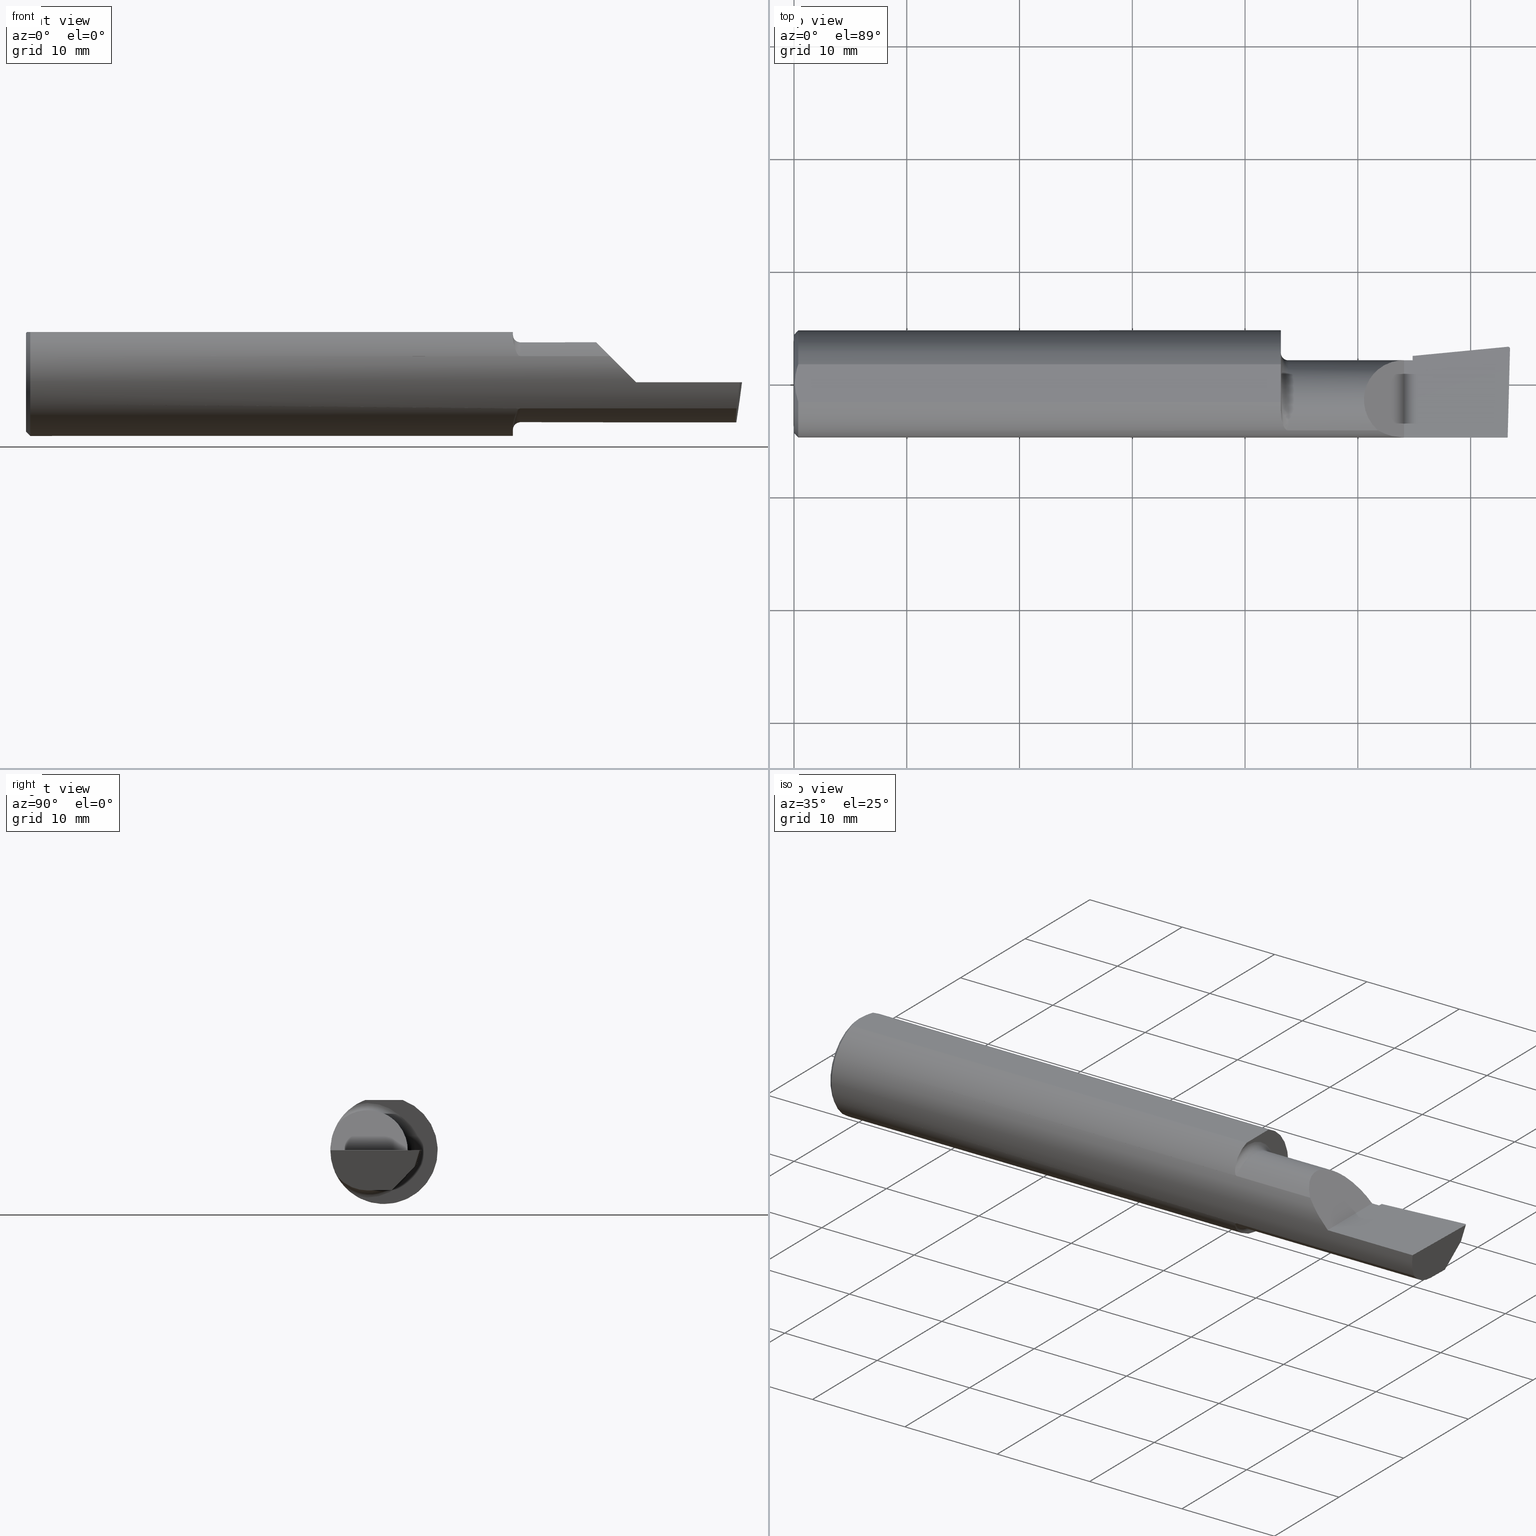
[diagram: canonical four-view strip — front | top / right | iso, engineering-drawing reading convention]
A machine part, canonical four-view strip (front | top / right | iso — engineering-drawing reading convention). The complete STEP part file that produces these views, byte-faithful:
ISO-10303-21;
HEADER;
FILE_DESCRIPTION (( 'STEP AP203' ),
    '1' );
FILE_NAME ('213660-B320750R.STEP',
    '2024-04-12T23:12:43',
    ( '' ),
    ( '' ),
    'SwSTEP 2.0',
    'SolidWorks 2022',
    '' );
FILE_SCHEMA (( 'CONFIG_CONTROL_DESIGN' ));
ENDSEC;

DATA;
#1 = ORIENTED_EDGE ( 'NONE', *, *, #63, .T. ) ;
#2 = CARTESIAN_POINT ( 'NONE',  ( 1.713764108097882932, -0.1573043405450769705, 0.1018329020719639239 ) ) ;
#3 = DIRECTION ( 'NONE',  ( 0.000000000000000000, 0.000000000000000000, 1.000000000000000000 ) ) ;
#4 = ORIENTED_EDGE ( 'NONE', *, *, #262, .F. ) ;
#5 = EDGE_CURVE ( 'NONE', #229, #623, #480, .T. ) ;
#6 = DIRECTION ( 'NONE',  ( -1.000000000000000000, -0.000000000000000000, -0.000000000000000000 ) ) ;
#7 = CARTESIAN_POINT ( 'NONE',  ( 1.701903396790307221, -0.1248165254919059997, -0.1399798634953948184 ) ) ;
#8 = ORIENTED_EDGE ( 'NONE', *, *, #447, .F. ) ;
#9 = EDGE_CURVE ( 'NONE', #566, #609, #526, .T. ) ;
#10 = CARTESIAN_POINT ( 'NONE',  ( 1.706142321956750418, -0.1426151417460928550, 0.1217894822571234936 ) ) ;
#11 = CARTESIAN_POINT ( 'NONE',  ( 2.487725449370724817, -0.1873500000000000443, -0.03213820089768506388 ) ) ;
#12 = CC_DESIGN_APPROVAL ( #347, ( #223 ) ) ;
#13 = ORIENTED_EDGE ( 'NONE', *, *, #370, .F. ) ;
#14 = VECTOR ( 'NONE', #366, 39.37007874015748854 ) ;
#15 = CARTESIAN_POINT ( 'NONE',  ( 1.700383728133729733, -0.1114837668894149425, 0.1508119329971098488 ) ) ;
#16 = ORIENTED_EDGE ( 'NONE', *, *, #209, .F. ) ;
#17 = DIRECTION ( 'NONE',  ( 0.7071067811865390240, 0.000000000000000000, -0.7071067811865560104 ) ) ;
#18 = ORIENTED_EDGE ( 'NONE', *, *, #670, .T. ) ;
#19 = APPROVAL_ROLE ( '' ) ;
#20 = DIRECTION ( 'NONE',  ( 0.000000000000000000, 0.000000000000000000, 1.000000000000000000 ) ) ;
#21 = ORIENTED_EDGE ( 'NONE', *, *, #201, .T. ) ;
#22 = VECTOR ( 'NONE', #338, 39.37007874015748854 ) ;
#23 = AXIS2_PLACEMENT_3D ( 'NONE', #495, #6, #281 ) ;
#24 = APPLICATION_PROTOCOL_DEFINITION ( 'international standard', 'config_control_design', 1994, #459 ) ;
#25 = CARTESIAN_POINT ( 'NONE',  ( 0.000000000000000000, 0.06597272163553663527, 0.1753499999999999781 ) ) ;
#26 = ORIENTED_EDGE ( 'NONE', *, *, #616, .F. ) ;
#27 = APPLICATION_PROTOCOL_DEFINITION ( 'international standard', 'config_control_design', 1994, #531 ) ;
#28 = ADVANCED_FACE ( 'NONE', ( #199 ), #45, .F. ) ;
#29 = CARTESIAN_POINT ( 'NONE',  ( 2.129999999999999893, -0.1873499999999999888, 1.065442715258197396E-16 ) ) ;
#30 = ORIENTED_EDGE ( 'NONE', *, *, #460, .T. ) ;
#31 = PERSON_AND_ORGANIZATION ( #589, #274 ) ;
#32 = DIRECTION ( 'NONE',  ( 0.000000000000000000, 1.000000000000000000, 8.537024980200821325E-17 ) ) ;
#33 = ORIENTED_EDGE ( 'NONE', *, *, #233, .T. ) ;
#34 = LOCAL_TIME ( 16, 12, 43.00000000000000000, #570 ) ;
#35 = AXIS2_PLACEMENT_3D ( 'NONE', #275, #393, #60 ) ;
#36 = DIRECTION ( 'NONE',  ( 1.000000000000000000, 0.000000000000000000, 0.000000000000000000 ) ) ;
#37 = ORIENTED_EDGE ( 'NONE', *, *, #5, .T. ) ;
#38 = ADVANCED_FACE ( 'NONE', ( #151 ), #40, .F. ) ;
#39 = LINE ( 'NONE', #635, #343 ) ;
#40 = PLANE ( 'NONE',  #165 ) ;
#41 = VERTEX_POINT ( 'NONE', #102 ) ;
#42 = EDGE_CURVE ( 'NONE', #609, #72, #578, .T. ) ;
#43 = DIRECTION ( 'NONE',  ( 0.000000000000000000, 1.000000000000000000, 0.000000000000000000 ) ) ;
#44 = CIRCLE ( 'NONE', #136, 0.1400500000000000356 ) ;
#45 = PLANE ( 'NONE',  #474 ) ;
#46 = CARTESIAN_POINT ( 'NONE',  ( 0.01499999999999999424, 0.06597272163553663527, 0.1753499999999999781 ) ) ;
#47 = CARTESIAN_POINT ( 'NONE',  ( 2.486748873877666188, 0.1140025764947606296, -0.05001468779820768262 ) ) ;
#48 = CARTESIAN_POINT ( 'NONE',  ( 2.493512870449283714, 0.1299961668063693288, 6.829619984160658046E-17 ) ) ;
#49 = CARTESIAN_POINT ( 'NONE',  ( 1.942499999999999893, -0.1635956445993030084, 0.09130436773856176469 ) ) ;
#50 = DIRECTION ( 'NONE',  ( 4.755568962650853567E-18, -0.6963153109074925462, -0.7177360153954946975 ) ) ;
#51 = CARTESIAN_POINT ( 'NONE',  ( 2.467035950088918739, 0.05927214514111213417, -0.1998254950914886141 ) ) ;
#52 = VECTOR ( 'NONE', #591, 39.37007874015748143 ) ;
#53 = APPROVAL_PERSON_ORGANIZATION ( #673, #611, #19 ) ;
#54 = DESIGN_CONTEXT ( 'detailed design', #531, 'design' ) ;
#55 = VERTEX_POINT ( 'NONE', #314 ) ;
#56 = FACE_OUTER_BOUND ( 'NONE', #685, .T. ) ;
#57 = CARTESIAN_POINT ( 'NONE',  ( 1.699999999999999956, -0.09715400696864101571, -0.1601908905959925355 ) ) ;
#58 = ORIENTED_EDGE ( 'NONE', *, *, #484, .T. ) ;
#59 = CARTESIAN_POINT ( 'NONE',  ( 1.722800914500664637, -0.1635956445997546194, 0.09130436773775278680 ) ) ;
#60 = DIRECTION ( 'NONE',  ( 0.000000000000000000, -1.000000000000000000, 0.000000000000000000 ) ) ;
#61 = VERTEX_POINT ( 'NONE', #372 ) ;
#62 = CARTESIAN_POINT ( 'NONE',  ( 1.699999999999999734, -0.1045012500212951778, 0.1557348687830036327 ) ) ;
#63 = EDGE_CURVE ( 'NONE', #139, #61, #259, .T. ) ;
#64 = CARTESIAN_POINT ( 'NONE',  ( 0.003000000000000172667, -0.01126410975715121283, 0.1753500000000000059 ) ) ;
#65 = ORIENTED_EDGE ( 'NONE', *, *, #684, .F. ) ;
#66 = CIRCLE ( 'NONE', #542, 0.1873499999999999888 ) ;
#67 = COORDINATED_UNIVERSAL_TIME_OFFSET ( 8, 0, .BEHIND. ) ;
#68 = DIRECTION ( 'NONE',  ( 1.000000000000000000, 6.829619984160658046E-18, 0.000000000000000000 ) ) ;
#69 = ORIENTED_EDGE ( 'NONE', *, *, #280, .T. ) ;
#70 = APPROVAL_DATE_TIME ( #564, #611 ) ;
#71 = CARTESIAN_POINT ( 'NONE',  ( 2.490039159128059953, -0.2497391662021650194, 6.932588350567417155E-17 ) ) ;
#72 = VERTEX_POINT ( 'NONE', #690 ) ;
#73 = ORIENTED_EDGE ( 'NONE', *, *, #219, .T. ) ;
#74 = CC_DESIGN_APPROVAL ( #318, ( #89 ) ) ;
#75 = EDGE_CURVE ( 'NONE', #590, #540, #203, .T. ) ;
#76 = AXIS2_PLACEMENT_3D ( 'NONE', #444, #222, #329 ) ;
#77 = PERSON_AND_ORGANIZATION ( #589, #274 ) ;
#78 = CARTESIAN_POINT ( 'NONE',  ( 2.038695632261437130, -0.1635956445993029529, 0.09130436773856191734 ) ) ;
#79 = EDGE_LOOP ( 'NONE', ( #619, #695, #494, #214, #178 ) ) ;
#80 = ADVANCED_FACE ( 'NONE', ( #576 ), #418, .F. ) ;
#81 = CARTESIAN_POINT ( 'NONE',  ( 0.000000000000000000, 0.000000000000000000, 0.000000000000000000 ) ) ;
#82 = FACE_OUTER_BOUND ( 'NONE', #79, .T. ) ;
#83 = ORIENTED_EDGE ( 'NONE', *, *, #422, .F. ) ;
#84 = VERTEX_POINT ( 'NONE', #630 ) ;
#85 = ADVANCED_FACE ( 'NONE', ( #643 ), #364, .T. ) ;
#86 = LINE ( 'NONE', #71, #156 ) ;
#87 = ORIENTED_EDGE ( 'NONE', *, *, #536, .F. ) ;
#88 = VECTOR ( 'NONE', #581, 39.37007874015748143 ) ;
#89 = PRODUCT_DEFINITION_FORMATION_WITH_SPECIFIED_SOURCE ( 'ANY', '', #377, .NOT_KNOWN. ) ;
#90 = CARTESIAN_POINT ( 'NONE',  ( 2.160000000000000142, -0.004807985797372735411, -0.1400500000000000911 ) ) ;
#91 = ADVANCED_FACE ( 'NONE', ( #584 ), #477, .T. ) ;
#92 = DIRECTION ( 'NONE',  ( 0.000000000000000000, 0.000000000000000000, -1.000000000000000000 ) ) ;
#93 = CARTESIAN_POINT ( 'NONE',  ( 2.497312560284794092, 0.1299961668063694675, 6.787656272032840287E-17 ) ) ;
#94 = LINE ( 'NONE', #633, #125 ) ;
#95 = EDGE_CURVE ( 'NONE', #609, #139, #94, .T. ) ;
#96 = CARTESIAN_POINT ( 'NONE',  ( 0.01125230581755086272, 0.05532998191409922023, 0.1753500000000000059 ) ) ;
#97 = DIRECTION ( 'NONE',  ( -0.1240019227988267969, -0.3022330132596590668, -0.9451342385281472636 ) ) ;
#98 = VECTOR ( 'NONE', #473, 39.37007874015748143 ) ;
#99 = CARTESIAN_POINT ( 'NONE',  ( 2.491672876940991710, -0.1873499999999999888, 6.915950918908297591E-17 ) ) ;
#100 = CARTESIAN_POINT ( 'NONE',  ( 2.509953961983671711, 0.1316084575252021438, -6.829619984160658046E-17 ) ) ;
#101 = DIRECTION ( 'NONE',  ( 4.755568962650853567E-18, -0.6963153109074925462, -0.7177360153954946975 ) ) ;
#102 = CARTESIAN_POINT ( 'NONE',  ( 0.01499999999999999424, 0.06597272163553663527, 0.1753499999999999781 ) ) ;
#103 = DIRECTION ( 'NONE',  ( -1.000000000000000000, -0.000000000000000000, -0.000000000000000000 ) ) ;
#104 = ADVANCED_FACE ( 'NONE', ( #693 ), #206, .T. ) ;
#105 = CARTESIAN_POINT ( 'NONE',  ( 2.160000000000000142, -0.05739999999999999963, 0.000000000000000000 ) ) ;
#106 = ORIENTED_EDGE ( 'NONE', *, *, #188, .T. ) ;
#107 = LINE ( 'NONE', #121, #575 ) ;
#108 = CIRCLE ( 'NONE', #35, 0.1400499999999999801 ) ;
#109 = DIRECTION ( 'NONE',  ( 0.000000000000000000, 0.9524855432518806175, -0.3045837978228160825 ) ) ;
#110 = AXIS2_PLACEMENT_3D ( 'NONE', #667, #176, #302 ) ;
#111 = CC_DESIGN_DATE_AND_TIME_ASSIGNMENT ( #251, #149, ( #223 ) ) ;
#112 = ORIENTED_EDGE ( 'NONE', *, *, #520, .F. ) ;
#113 = CARTESIAN_POINT ( 'NONE',  ( 2.160000000000000142, 0.06382066673065313334, -0.06931012851386068874 ) ) ;
#114 = CARTESIAN_POINT ( 'NONE',  ( 2.481080296960508580, -0.1635956445993030084, -0.09130436773856176469 ) ) ;
#115 = ORIENTED_EDGE ( 'NONE', *, *, #116, .F. ) ;
#116 = EDGE_CURVE ( 'NONE', #284, #683, #594, .T. ) ;
#117 = DIMENSIONAL_EXPONENTS ( 1.000000000000000000, 0.000000000000000000, 0.000000000000000000, 0.000000000000000000, 0.000000000000000000, 0.000000000000000000, 0.000000000000000000 ) ;
#118 = CARTESIAN_POINT ( 'NONE',  ( 1.699999999999999956, -0.05740000000000000657, 0.000000000000000000 ) ) ;
#119 = CARTESIAN_POINT ( 'NONE',  ( 2.493766568580444432, 0.1168246249203732934, -0.04780233936830599606 ) ) ;
#120 = ORIENTED_EDGE ( 'NONE', *, *, #447, .T. ) ;
#121 = CARTESIAN_POINT ( 'NONE',  ( 2.500086462864346881, 0.1239389743774740454, 0.002134693520102628507 ) ) ;
#122 = LINE ( 'NONE', #119, #22 ) ;
#123 = AXIS2_PLACEMENT_3D ( 'NONE', #367, #579, #423 ) ;
#124 = ORIENTED_EDGE ( 'NONE', *, *, #219, .F. ) ;
#125 = VECTOR ( 'NONE', #320, 39.37007874015748854 ) ;
#126 = AXIS2_PLACEMENT_3D ( 'NONE', #252, #660, #608 ) ;
#127 = PERSON_AND_ORGANIZATION ( #589, #274 ) ;
#128 = PLANE ( 'NONE',  #499 ) ;
#129 = ORIENTED_EDGE ( 'NONE', *, *, #515, .T. ) ;
#130 =( LENGTH_UNIT ( ) NAMED_UNIT ( * ) SI_UNIT ( $, .METRE. ) );
#131 = DIRECTION ( 'NONE',  ( 0.000000000000000000, 1.000000000000000000, -1.438723400918613551E-16 ) ) ;
#132 = EDGE_LOOP ( 'NONE', ( #16, #144, #483, #289 ) ) ;
#133 = DIRECTION ( 'NONE',  ( 1.000000000000000000, 0.000000000000000000, 0.000000000000000000 ) ) ;
#134 = DIRECTION ( 'NONE',  ( -1.000000000000000000, -6.829619984160658046E-18, 0.000000000000000000 ) ) ;
#135 = ORIENTED_EDGE ( 'NONE', *, *, #404, .F. ) ;
#136 = AXIS2_PLACEMENT_3D ( 'NONE', #558, #402, #137 ) ;
#137 = DIRECTION ( 'NONE',  ( 0.000000000000000000, -1.000000000000000000, 0.000000000000000000 ) ) ;
#138 = PLANE ( 'NONE',  #310 ) ;
#139 = VERTEX_POINT ( 'NONE', #283 ) ;
#140 = DIRECTION ( 'NONE',  ( -1.000000000000000000, 0.000000000000000000, 1.033731667140896077E-16 ) ) ;
#141 = VERTEX_POINT ( 'NONE', #441 ) ;
#142 = ADVANCED_FACE ( 'NONE', ( #592 ), #645, .T. ) ;
#143 = CARTESIAN_POINT ( 'NONE',  ( 2.493512870449283714, 0.1299961668063693288, 6.829619984160658046E-17 ) ) ;
#144 = ORIENTED_EDGE ( 'NONE', *, *, #587, .T. ) ;
#145 =( BOUNDED_CURVE ( )  B_SPLINE_CURVE ( 3, ( #195, #265, #638, #624 ),
 .UNSPECIFIED., .F., .T. ) 
 B_SPLINE_CURVE_WITH_KNOTS ( ( 4, 4 ),
 ( 5.632580117768155148, 6.493234751459282528 ),
 .UNSPECIFIED. ) 
 CURVE ( )  GEOMETRIC_REPRESENTATION_ITEM ( )  RATIONAL_B_SPLINE_CURVE ( ( 1.000000000000000000, 0.9392195014330944058, 0.9392195014330944058, 1.000000000000000000 ) ) 
 REPRESENTATION_ITEM ( '' )  );
#146 = AXIS2_PLACEMENT_3D ( 'NONE', #497, #228, #3 ) ;
#147 = VECTOR ( 'NONE', #50, 39.37007874015748854 ) ;
#148 = DIRECTION ( 'NONE',  ( 0.000000000000000000, 0.9524855432518806175, -0.3045837978228160825 ) ) ;
#149 = DATE_TIME_ROLE ( 'classification_date' ) ;
#150 = CARTESIAN_POINT ( 'NONE',  ( 2.499910038027473025, 0.1272144908750952319, 6.760805322059822821E-17 ) ) ;
#151 = FACE_OUTER_BOUND ( 'NONE', #192, .T. ) ;
#152 = EDGE_CURVE ( 'NONE', #55, #595, #451, .T. ) ;
#153 = CARTESIAN_POINT ( 'NONE',  ( 1.975085956200449022, 0.08265000000000000124, 0.1549140437995494002 ) ) ;
#154 = CARTESIAN_POINT ( 'NONE',  ( 2.486346664144835739, 0.1139780975458775103, -0.04999999999999999584 ) ) ;
#155 = CARTESIAN_POINT ( 'NONE',  ( 0.003000000000000169632, 0.01127363201155560934, 0.1753499999999999781 ) ) ;
#156 = VECTOR ( 'NONE', #247, 39.37007874015748854 ) ;
#157 = DIRECTION ( 'NONE',  ( -4.858719700838190352E-34, -8.537024980200821325E-17, 1.000000000000000000 ) ) ;
#158 = ADVANCED_FACE ( 'NONE', ( #170 ), #600, .T. ) ;
#159 = CARTESIAN_POINT ( 'NONE',  ( 1.708072954143139865, -0.1479074971576196662, 0.1152872342625233942 ) ) ;
#160 = CARTESIAN_POINT ( 'NONE',  ( -9.564882787816664242E-19, 0.08264999999999998737, 3.267291166268304703E-16 ) ) ;
#161 = CARTESIAN_POINT ( 'NONE',  ( 1.724999999999999867, -0.1635956445993027586, 0.09130436773856215327 ) ) ;
#162 = CARTESIAN_POINT ( 'NONE',  ( 1.712184598714912687, -0.1550322129197695409, -0.1052705638704085067 ) ) ;
#163 = EDGE_LOOP ( 'NONE', ( #168, #276 ) ) ;
#164 = CARTESIAN_POINT ( 'NONE',  ( 2.160000000000000142, 0.09456875743780475407, -0.01088401009027229610 ) ) ;
#165 = AXIS2_PLACEMENT_3D ( 'NONE', #687, #157, #697 ) ;
#166 = CARTESIAN_POINT ( 'NONE',  ( 1.724999999999999867, -0.1635956445993029251, -0.09130436773856190347 ) ) ;
#167 = EDGE_CURVE ( 'NONE', #601, #306, #634, .T. ) ;
#168 = ORIENTED_EDGE ( 'NONE', *, *, #536, .T. ) ;
#169 = CARTESIAN_POINT ( 'NONE',  ( 2.492906680581862044, 0.1299669910246663562, 6.902945873237403297E-17 ) ) ;
#170 = FACE_OUTER_BOUND ( 'NONE', #399, .T. ) ;
#171 = ORIENTED_EDGE ( 'NONE', *, *, #670, .F. ) ;
#172 = CARTESIAN_POINT ( 'NONE',  ( 2.038695632261437130, -0.1635956445993029529, 0.09130436773856191734 ) ) ;
#173 = CARTESIAN_POINT ( 'NONE',  ( 0.01499999999999999424, 0.000000000000000000, -0.1873499999999999888 ) ) ;
#174 = ORIENTED_EDGE ( 'NONE', *, *, #75, .F. ) ;
#175 = APPROVAL_STATUS ( 'not_yet_approved' ) ;
#176 = DIRECTION ( 'NONE',  ( -0.06894566448119621160, 0.7160281025913034503, -0.6946583704589934793 ) ) ;
#177 = VECTOR ( 'NONE', #68, 39.37007874015748143 ) ;
#178 = ORIENTED_EDGE ( 'NONE', *, *, #5, .F. ) ;
#179 = AXIS2_PLACEMENT_3D ( 'NONE', #218, #440, #652 ) ;
#180 = EDGE_CURVE ( 'NONE', #613, #194, #122, .T. ) ;
#181 = PLANE ( 'NONE',  #409 ) ;
#182 = ORIENTED_EDGE ( 'NONE', *, *, #42, .T. ) ;
#183 = CARTESIAN_POINT ( 'NONE',  ( 2.129999999999999893, -0.2500000000000000555, 1.065442715258197396E-16 ) ) ;
#184 = CARTESIAN_POINT ( 'NONE',  ( 2.477873865042410806, -0.05739999999999999963, -0.1400500000000000633 ) ) ;
#185 = EDGE_LOOP ( 'NONE', ( #405, #462 ) ) ;
#186 = CARTESIAN_POINT ( 'NONE',  ( 1.699999999999999956, -0.09715400696864101571, -0.1601908905959925355 ) ) ;
#187 = ORIENTED_EDGE ( 'NONE', *, *, #627, .F. ) ;
#188 = EDGE_CURVE ( 'NONE', #590, #601, #108, .T. ) ;
#189 = VECTOR ( 'NONE', #385, 39.37007874015748143 ) ;
#190 = DATE_AND_TIME ( #301, #417 ) ;
#191 = CARTESIAN_POINT ( 'NONE',  ( 2.491786964307025176, 0.1037103972642544891, -0.06112352112763055206 ) ) ;
#192 = EDGE_LOOP ( 'NONE', ( #471, #524, #30, #349 ) ) ;
#193 = CC_DESIGN_PERSON_AND_ORGANIZATION_ASSIGNMENT ( #396, #358, ( #571 ) ) ;
#194 = VERTEX_POINT ( 'NONE', #549 ) ;
#195 = CARTESIAN_POINT ( 'NONE',  ( 2.481080296960508580, -0.1635956445993030084, -0.09130436773856176469 ) ) ;
#196 = ORIENTED_EDGE ( 'NONE', *, *, #616, .T. ) ;
#197 =( BOUNDED_CURVE ( )  B_SPLINE_CURVE ( 3, ( #464, #509, #457, #191 ),
 .UNSPECIFIED., .F., .F. ) 
 B_SPLINE_CURVE_WITH_KNOTS ( ( 4, 4 ),
 ( 3.156599629463173073, 4.715023529952367731 ),
 .UNSPECIFIED. ) 
 CURVE ( )  GEOMETRIC_REPRESENTATION_ITEM ( )  RATIONAL_B_SPLINE_CURVE ( ( 1.000000000000000000, 0.8076450242550557990, 0.8076450242550557990, 1.000000000000000000 ) ) 
 REPRESENTATION_ITEM ( '' )  );
#198 = DIRECTION ( 'NONE',  ( 0.1219104985251942275, 0.000000000000000000, 0.9925410975618785825 ) ) ;
#199 = FACE_OUTER_BOUND ( 'NONE', #163, .T. ) ;
#200 = VECTOR ( 'NONE', #656, 39.37007874015748854 ) ;
#201 = EDGE_CURVE ( 'NONE', #625, #229, #653, .T. ) ;
#202 = DIRECTION ( 'NONE',  ( -0.9922060308645608284, 0.02598182930461468559, 0.1218693434050591162 ) ) ;
#203 = LINE ( 'NONE', #49, #286 ) ;
#204 = CALENDAR_DATE ( 2024, 12, 4 ) ;
#205 = DIRECTION ( 'NONE',  ( -6.829619984160658046E-18, 1.000000000000000000, 0.000000000000000000 ) ) ;
#206 = PLANE ( 'NONE',  #309 ) ;
#207 = CARTESIAN_POINT ( 'NONE',  ( 1.699999999999999956, 0.000000000000000000, 0.000000000000000000 ) ) ;
#208 = ORIENTED_EDGE ( 'NONE', *, *, #391, .T. ) ;
#209 = EDGE_CURVE ( 'NONE', #517, #566, #631, .T. ) ;
#210 = CIRCLE ( 'NONE', #606, 0.1873499999999999888 ) ;
#211 = DIRECTION ( 'NONE',  ( 0.1240019227988267553, 0.3022330132596590113, 0.9451342385281470415 ) ) ;
#212 = AXIS2_PLACEMENT_3D ( 'NONE', #688, #202, #198 ) ;
#213 = DIRECTION ( 'NONE',  ( -0.7071067811865439090, 0.000000000000000000, -0.7071067811865512365 ) ) ;
#214 = ORIENTED_EDGE ( 'NONE', *, *, #233, .F. ) ;
#215 = CARTESIAN_POINT ( 'NONE',  ( 2.160000000000000142, 0.09791172361284175563, 3.308097179827818849E-16 ) ) ;
#216 = DIRECTION ( 'NONE',  ( -0.09165774897393341725, 0.9519021185660614393, -0.2923717047227303856 ) ) ;
#217 = ORIENTED_EDGE ( 'NONE', *, *, #520, .T. ) ;
#218 = CARTESIAN_POINT ( 'NONE',  ( 0.01499999999999999424, 0.000000000000000000, 0.000000000000000000 ) ) ;
#219 = EDGE_CURVE ( 'NONE', #84, #518, #386, .T. ) ;
#220 = CARTESIAN_POINT ( 'NONE',  ( 2.493512870449283714, 0.1299961668063693288, 6.829619984160658046E-17 ) ) ;
#221 = ORIENTED_EDGE ( 'NONE', *, *, #188, .F. ) ;
#222 = DIRECTION ( 'NONE',  ( 1.000000000000000000, 6.829619984160658046E-18, 0.000000000000000000 ) ) ;
#223 = SECURITY_CLASSIFICATION ( '', '', #355 ) ;
#224 = CARTESIAN_POINT ( 'NONE',  ( 2.491672876940991710, -0.1873499999999999888, 6.915950918908297591E-17 ) ) ;
#225 = AXIS2_PLACEMENT_3D ( 'NONE', #519, #562, #307 ) ;
#226 = ORIENTED_EDGE ( 'NONE', *, *, #632, .F. ) ;
#227 = CARTESIAN_POINT ( 'NONE',  ( 2.480058035321255794, 0.02601009779168077587, -0.1400500000000000633 ) ) ;
#228 = DIRECTION ( 'NONE',  ( -1.000000000000000000, -0.000000000000000000, -0.000000000000000000 ) ) ;
#229 = VERTEX_POINT ( 'NONE', #503 ) ;
#230 = DIRECTION ( 'NONE',  ( 0.000000000000000000, 0.000000000000000000, 1.000000000000000000 ) ) ;
#231 = CARTESIAN_POINT ( 'NONE',  ( 1.722779935319434408, -0.1635956445993029529, -0.09130436773856197286 ) ) ;
#232 = ORIENTED_EDGE ( 'NONE', *, *, #587, .F. ) ;
#233 = EDGE_CURVE ( 'NONE', #623, #141, #490, .T. ) ;
#234 = CALENDAR_DATE ( 2024, 12, 4 ) ;
#235 = CARTESIAN_POINT ( 'NONE',  ( 2.066758987970638284, -0.1792580844883770730, 0.06324101202936138755 ) ) ;
#236 = ORIENTED_EDGE ( 'NONE', *, *, #422, .T. ) ;
#237 = VECTOR ( 'NONE', #32, 39.37007874015748143 ) ;
#238 = CC_DESIGN_PERSON_AND_ORGANIZATION_ASSIGNMENT ( #31, #365, ( #223 ) ) ;
#239 = CALENDAR_DATE ( 2024, 12, 4 ) ;
#240 = CARTESIAN_POINT ( 'NONE',  ( 2.097861799102314961, -0.1873500000000000165, 0.03213820089768509858 ) ) ;
#241 = EDGE_LOOP ( 'NONE', ( #303, #554, #469 ) ) ;
#242 = DIRECTION ( 'NONE',  ( -0.000000000000000000, 1.000000000000000000, -0.000000000000000000 ) ) ;
#243 = EDGE_CURVE ( 'NONE', #299, #646, #657, .T. ) ;
#244 = LINE ( 'NONE', #25, #605 ) ;
#245 = EDGE_LOOP ( 'NONE', ( #208, #615, #455, #171 ) ) ;
#246 = PERSON_AND_ORGANIZATION ( #589, #274 ) ;
#247 = DIRECTION ( 'NONE',  ( 0.02617694830779364323, 0.9996573249755593693, -2.665804247635780349E-18 ) ) ;
#248 = ORIENTED_EDGE ( 'NONE', *, *, #116, .T. ) ;
#249 = AXIS2_PLACEMENT_3D ( 'NONE', #317, #213, #430 ) ;
#250 = TOROIDAL_SURFACE ( 'NONE', #641, 0.1650500000000000023, 0.02499999999999992853 ) ;
#251 = DATE_AND_TIME ( #532, #373 ) ;
#252 = CARTESIAN_POINT ( 'NONE',  ( 1.699999999999999956, 0.000000000000000000, 0.000000000000000000 ) ) ;
#253 = ORIENTED_EDGE ( 'NONE', *, *, #460, .F. ) ;
#254 = APPROVAL_STATUS ( 'not_yet_approved' ) ;
#255 = CARTESIAN_POINT ( 'NONE',  ( 2.129999999999999893, -0.1873499999999999888, 1.065442715258197396E-16 ) ) ;
#256 = ORIENTED_EDGE ( 'NONE', *, *, #75, .T. ) ;
#257 = ADVANCED_FACE ( 'NONE', ( #453 ), #138, .F. ) ;
#258 = CARTESIAN_POINT ( 'NONE',  ( 1.699999999999999956, 0.1076500000000000096, 0.000000000000000000 ) ) ;
#259 = LINE ( 'NONE', #325, #530 ) ;
#260 = CC_DESIGN_SECURITY_CLASSIFICATION ( #223, ( #89 ) ) ;
#261 = AXIS2_PLACEMENT_3D ( 'NONE', #277, #538, #552 ) ;
#262 = EDGE_CURVE ( 'NONE', #646, #623, #210, .T. ) ;
#263 = CARTESIAN_POINT ( 'NONE',  ( 2.129999999999999893, 0.08264999999999990410, 1.065442715258197396E-16 ) ) ;
#264 = CARTESIAN_POINT ( 'NONE',  ( 0.000000000000000000, 0.000000000000000000, 0.000000000000000000 ) ) ;
#265 = CARTESIAN_POINT ( 'NONE',  ( 2.477925907309857401, -0.1365595166907235813, -0.1227499502647108609 ) ) ;
#266 = EDGE_CURVE ( 'NONE', #446, #540, #345, .T. ) ;
#267 = EDGE_LOOP ( 'NONE', ( #112, #563, #221, #256, #120, #248, #449, #226, #521, #253 ) ) ;
#268 = DIRECTION ( 'NONE',  ( 0.000000000000000000, -1.000000000000000000, 0.000000000000000000 ) ) ;
#269 = DIRECTION ( 'NONE',  ( 1.000000000000000000, 6.829619984160658046E-18, 0.000000000000000000 ) ) ;
#270 = ADVANCED_FACE ( 'NONE', ( #565 ), #359, .T. ) ;
#271 = AXIS2_PLACEMENT_3D ( 'NONE', #369, #97, #148 ) ;
#272 = CIRCLE ( 'NONE', #76, 0.1400500000000000356 ) ;
#273 = CARTESIAN_POINT ( 'NONE',  ( 0.01499999999999999424, 0.000000000000000000, -0.1873499999999999888 ) ) ;
#274 = ORGANIZATION ( 'UNSPECIFIED', 'UNSPECIFIED', '' ) ;
#275 = CARTESIAN_POINT ( 'NONE',  ( 1.724999999999999867, -0.05740000000000000657, 0.000000000000000000 ) ) ;
#276 = ORIENTED_EDGE ( 'NONE', *, *, #580, .T. ) ;
#277 = CARTESIAN_POINT ( 'NONE',  ( 2.160000000000000142, 0.09791172361283667636, 0.000000000000000000 ) ) ;
#278 = CARTESIAN_POINT ( 'NONE',  ( 1.717975941902153192, -0.1612443294219078060, -0.09540922431498248535 ) ) ;
#279 = ORIENTED_EDGE ( 'NONE', *, *, #637, .F. ) ;
#280 = EDGE_CURVE ( 'NONE', #41, #625, #244, .T. ) ;
#281 = DIRECTION ( 'NONE',  ( 0.000000000000000000, 0.000000000000000000, 1.000000000000000000 ) ) ;
#282 = B_SPLINE_CURVE_WITH_KNOTS ( 'NONE', 3,
 ( #492, #62, #15, #642, #333, #10, #159, #436, #2, #555, #602, #599, #59, #547 ),
 .UNSPECIFIED., .F., .F.,
 ( 4, 2, 2, 2, 2, 2, 4 ),
 ( 0.0002471551878304205298, 0.0008987327522055599521, 0.001550310316580699212, 0.002201887880955839122, 0.002527676663143408210, 0.002690571054237193404, 0.002853465445330977731 ),
 .UNSPECIFIED. ) ;
#283 = CARTESIAN_POINT ( 'NONE',  ( 2.160000000000000142, 0.08255448787293399870, -0.05000000000000000278 ) ) ;
#284 = VERTEX_POINT ( 'NONE', #675 ) ;
#285 = DIRECTION ( 'NONE',  ( -1.000000000000000000, -0.000000000000000000, -0.000000000000000000 ) ) ;
#286 = VECTOR ( 'NONE', #269, 39.37007874015748143 ) ;
#287 = CARTESIAN_POINT ( 'NONE',  ( 0.003000000000000218638, 2.334609556160449697E-17, 0.1753499999999999781 ) ) ;
#288 = VECTOR ( 'NONE', #694, 39.37007874015748143 ) ;
#289 = ORIENTED_EDGE ( 'NONE', *, *, #9, .F. ) ;
#290 = DATE_TIME_ROLE ( 'creation_date' ) ;
#291 = CARTESIAN_POINT ( 'NONE',  ( 1.700000000000000178, -0.1045082199249679489, -0.1557306416133595883 ) ) ;
#292 = ADVANCED_FACE ( 'NONE', ( #612 ), #428, .T. ) ;
#293 = ORIENTED_EDGE ( 'NONE', *, *, #607, .T. ) ;
#294 = COORDINATED_UNIVERSAL_TIME_OFFSET ( 8, 0, .BEHIND. ) ;
#295 = LINE ( 'NONE', #506, #14 ) ;
#296 = ORIENTED_EDGE ( 'NONE', *, *, #180, .F. ) ;
#297 =( NAMED_UNIT ( * ) PLANE_ANGLE_UNIT ( ) SI_UNIT ( $, .RADIAN. ) );
#298 = CARTESIAN_POINT ( 'NONE',  ( 2.500000000000000000, -0.2500000000000000555, 6.829619984160658046E-17 ) ) ;
#299 = VERTEX_POINT ( 'NONE', #400 ) ;
#300 = CIRCLE ( 'NONE', #126, 0.1873499999999999888 ) ;
#301 = CALENDAR_DATE ( 2024, 12, 4 ) ;
#302 = DIRECTION ( 'NONE',  ( 0.000000000000000000, 0.6963153109074925462, 0.7177360153954948085 ) ) ;
#303 = ORIENTED_EDGE ( 'NONE', *, *, #152, .F. ) ;
#304 = LINE ( 'NONE', #183, #354 ) ;
#305 = CARTESIAN_POINT ( 'NONE',  ( 2.160000000000000142, -0.05739999999999999963, -0.1400500000000000633 ) ) ;
#306 = VERTEX_POINT ( 'NONE', #186 ) ;
#307 = DIRECTION ( 'NONE',  ( 0.000000000000000000, 0.000000000000000000, -1.000000000000000000 ) ) ;
#308 = ORIENTED_EDGE ( 'NONE', *, *, #167, .T. ) ;
#309 = AXIS2_PLACEMENT_3D ( 'NONE', #100, #216, #556 ) ;
#310 = AXIS2_PLACEMENT_3D ( 'NONE', #512, #134, #352 ) ;
#311 = AXIS2_PLACEMENT_3D ( 'NONE', #81, #230, #133 ) ;
#312 = COORDINATED_UNIVERSAL_TIME_OFFSET ( 8, 0, .BEHIND. ) ;
#313 = LINE ( 'NONE', #479, #288 ) ;
#314 = CARTESIAN_POINT ( 'NONE',  ( 2.160000000000000142, 0.01441505128072292918, -0.1202356058309980713 ) ) ;
#315 = ADVANCED_FACE ( 'NONE', ( #82 ), #572, .F. ) ;
#316 = PLANE ( 'NONE',  #663 ) ;
#317 = CARTESIAN_POINT ( 'NONE',  ( 2.129999999999999893, -0.2500000000000000555, 1.065442715258197396E-16 ) ) ;
#318 = APPROVAL ( #617, 'UNSPECIFIED' ) ;
#319 = CARTESIAN_POINT ( 'NONE',  ( 2.500000000000000000, -0.05739999999999999963, -0.1400500000000000633 ) ) ;
#320 = DIRECTION ( 'NONE',  ( -0.9953961983671800740, -0.09584575252021031166, 0.000000000000000000 ) ) ;
#321 = EDGE_CURVE ( 'NONE', #306, #625, #300, .T. ) ;
#322 = CARTESIAN_POINT ( 'NONE',  ( 2.499806390372749210, 0.1232563466314183787, 6.833120963331979760E-17 ) ) ;
#323 = ORIENTED_EDGE ( 'NONE', *, *, #167, .F. ) ;
#324 = CARTESIAN_POINT ( 'NONE',  ( 1.921229036482944075, -0.06260079402492431389, 0.2087709635170538203 ) ) ;
#325 = CARTESIAN_POINT ( 'NONE',  ( 2.160000000000000142, 0.06382066673065313334, -0.06931012851386068874 ) ) ;
#326 = LINE ( 'NONE', #113, #147 ) ;
#327 = CARTESIAN_POINT ( 'NONE',  ( 1.700384441902395238, -0.1115101367984837888, -0.1507946173152225899 ) ) ;
#328 = UNCERTAINTY_MEASURE_WITH_UNIT (LENGTH_MEASURE( 1.000000000000000082E-05 ), #410, 'distance_accuracy_value', 'NONE');
#329 = DIRECTION ( 'NONE',  ( 0.000000000000000000, -1.000000000000000000, -1.776356839400250070E-15 ) ) ;
#330 = DIRECTION ( 'NONE',  ( -1.000000000000000000, -6.829619984160658046E-18, -0.000000000000000000 ) ) ;
#331 = EDGE_LOOP ( 'NONE', ( #293, #106, #308, #26 ) ) ;
#332 = ADVANCED_FACE ( 'NONE', ( #407 ), #181, .T. ) ;
#333 = CARTESIAN_POINT ( 'NONE',  ( 1.703025912205683445, -0.1310442973014112333, 0.1341609063345044761 ) ) ;
#334 = DIRECTION ( 'NONE',  ( -0.1240019227988267969, -0.3022330132596590668, -0.9451342385281472636 ) ) ;
#335 = ORIENTED_EDGE ( 'NONE', *, *, #266, .F. ) ;
#336 = CC_DESIGN_PERSON_AND_ORGANIZATION_ASSIGNMENT ( #246, #610, ( #377 ) ) ;
#337 = CARTESIAN_POINT ( 'NONE',  ( 1.724999999999999867, -0.1635956445993029251, -0.09130436773856190347 ) ) ;
#338 = DIRECTION ( 'NONE',  ( 0.1053106618240635256, 0.6976485211320200275, 0.7086580314005359593 ) ) ;
#339 = ORIENTED_EDGE ( 'NONE', *, *, #442, .F. ) ;
#340 = DIRECTION ( 'NONE',  ( 0.000000000000000000, 0.000000000000000000, 1.000000000000000000 ) ) ;
#341 = EDGE_CURVE ( 'NONE', #595, #443, #568, .T. ) ;
#342 = CARTESIAN_POINT ( 'NONE',  ( 0.004093196532652216939, -0.02240707710020816909, 0.1753499999999999504 ) ) ;
#343 = VECTOR ( 'NONE', #371, 39.37007874015748143 ) ;
#344 = ORIENTED_EDGE ( 'NONE', *, *, #63, .F. ) ;
#345 =( BOUNDED_CURVE ( )  B_SPLINE_CURVE ( 3, ( #29, #240, #235, #78 ),
 .UNSPECIFIED., .F., .F. ) 
 B_SPLINE_CURVE_WITH_KNOTS ( ( 4, 4 ),
 ( 4.712388980384689674, 5.221437360734125122 ),
 .UNSPECIFIED. ) 
 CURVE ( )  GEOMETRIC_REPRESENTATION_ITEM ( )  RATIONAL_B_SPLINE_CURVE ( ( 1.000000000000000000, 0.9785221379938656705, 0.9785221379938656705, 1.000000000000000000 ) ) 
 REPRESENTATION_ITEM ( '' )  );
#346 =( NAMED_UNIT ( * ) SI_UNIT ( $, .STERADIAN. ) SOLID_ANGLE_UNIT ( ) );
#347 = APPROVAL ( #254, 'UNSPECIFIED' ) ;
#348 = CARTESIAN_POINT ( 'NONE',  ( 0.000000000000000000, 2.202527268266512578E-17, 0.1723499999999996424 ) ) ;
#349 = ORIENTED_EDGE ( 'NONE', *, *, #341, .T. ) ;
#350 = DIRECTION ( 'NONE',  ( 6.829619984160658046E-18, -1.000000000000000000, 0.000000000000000000 ) ) ;
#351 = ORIENTED_EDGE ( 'NONE', *, *, #395, .T. ) ;
#352 = DIRECTION ( 'NONE',  ( 6.829619984160658046E-18, -1.000000000000000000, 0.000000000000000000 ) ) ;
#353 = ORIENTED_EDGE ( 'NONE', *, *, #684, .T. ) ;
#354 = VECTOR ( 'NONE', #242, 39.37007874015748143 ) ;
#355 = SECURITY_CLASSIFICATION_LEVEL ( 'unclassified' ) ;
#356 = CARTESIAN_POINT ( 'NONE',  ( 2.500000000000000000, 0.2373500000000000332, 0.1753499999999999504 ) ) ;
#357 = VERTEX_POINT ( 'NONE', #184 ) ;
#358 = PERSON_AND_ORGANIZATION_ROLE ( 'creator' ) ;
#359 = PLANE ( 'NONE',  #110 ) ;
#360 = ORIENTED_EDGE ( 'NONE', *, *, #664, .T. ) ;
#361 = EDGE_CURVE ( 'NONE', #518, #465, #86, .T. ) ;
#362 = DIRECTION ( 'NONE',  ( 1.000000000000000000, 6.829619984160658046E-18, 0.000000000000000000 ) ) ;
#363 = APPROVAL_PERSON_ORGANIZATION ( #468, #347, #626 ) ;
#364 = CYLINDRICAL_SURFACE ( 'NONE', #271, 0.006499999999999996232 ) ;
#365 = PERSON_AND_ORGANIZATION_ROLE ( 'classification_officer' ) ;
#366 = DIRECTION ( 'NONE',  ( -0.9953961983671800740, -0.09584575252021031166, -1.093478026937437817E-17 ) ) ;
#367 = CARTESIAN_POINT ( 'NONE',  ( 0.000000000000000000, -0.05740000000000001351, 0.000000000000000000 ) ) ;
#368 = CARTESIAN_POINT ( 'NONE',  ( 1.724999999999999867, -0.05739999999999999963, 0.000000000000000000 ) ) ;
#369 = CARTESIAN_POINT ( 'NONE',  ( 2.467035950088918739, 0.05927214514111213417, -0.1998254950914886141 ) ) ;
#370 = EDGE_CURVE ( 'NONE', #72, #194, #197, .T. ) ;
#371 = DIRECTION ( 'NONE',  ( -1.000000000000000000, -0.000000000000000000, -0.000000000000000000 ) ) ;
#372 = CARTESIAN_POINT ( 'NONE',  ( 2.160000000000000142, 0.06495571228477951820, -0.06814016562413285905 ) ) ;
#373 = LOCAL_TIME ( 16, 12, 43.00000000000000000, #312 ) ;
#374 = CIRCLE ( 'NONE', #485, 0.1723499999999996424 ) ;
#375 = LINE ( 'NONE', #525, #586 ) ;
#376 = CARTESIAN_POINT ( 'NONE',  ( 2.160000000000000142, -0.2500000000000000555, 1.034430765243970311E-16 ) ) ;
#377 = PRODUCT ( '213660-B320750R', '213660-B320750R', '', ( #505 ) ) ;
#378 = CARTESIAN_POINT ( 'NONE',  ( 1.708068207442170472, -0.1478915270140208349, -0.1153063024254927099 ) ) ;
#379 = CARTESIAN_POINT ( 'NONE',  ( 0.01499999999999997863, -0.06597272163553657975, 0.1753499999999999781 ) ) ;
#380 = ADVANCED_FACE ( 'NONE', ( #411 ), #128, .F. ) ;
#381 = CARTESIAN_POINT ( 'NONE',  ( 1.706145841430604326, -0.1426194794824336698, -0.1217813759115470157 ) ) ;
#382 = EDGE_LOOP ( 'NONE', ( #561, #182, #433, #296, #351, #394, #135, #344 ) ) ;
#383 = AXIS2_PLACEMENT_3D ( 'NONE', #356, #618, #131 ) ;
#384 = DIRECTION ( 'NONE',  ( 2.005228508682076666E-18, -0.2936076258024060692, -0.9559260233253795702 ) ) ;
#385 = DIRECTION ( 'NONE',  ( 6.829619984160658046E-18, -1.000000000000000000, 1.438723400918613551E-16 ) ) ;
#386 =( BOUNDED_CURVE ( )  B_SPLINE_CURVE ( 3, ( #114, #603, #11, #224 ),
 .UNSPECIFIED., .F., .T. ) 
 B_SPLINE_CURVE_WITH_KNOTS ( ( 4, 4 ),
 ( 0.8516985021657650368, 1.360746882515200484 ),
 .UNSPECIFIED. ) 
 CURVE ( )  GEOMETRIC_REPRESENTATION_ITEM ( )  RATIONAL_B_SPLINE_CURVE ( ( 1.000000000000000000, 0.9785221379938656705, 0.9785221379938656705, 1.000000000000000000 ) ) 
 REPRESENTATION_ITEM ( '' )  );
#387 = VERTEX_POINT ( 'NONE', #348 ) ;
#388 = CARTESIAN_POINT ( 'NONE',  ( 2.160000000000000142, -0.05739999999999999963, -0.1400500000000000633 ) ) ;
#389 = CARTESIAN_POINT ( 'NONE',  ( 0.008227791779583789808, -0.04447712204611815878, 0.1753499999999999781 ) ) ;
#390 = ORIENTED_EDGE ( 'NONE', *, *, #515, .F. ) ;
#391 = EDGE_CURVE ( 'NONE', #573, #566, #671, .T. ) ;
#392 = CARTESIAN_POINT ( 'NONE',  ( 1.699999999999999956, -0.09715400696864101571, 0.1601908905959925355 ) ) ;
#393 = DIRECTION ( 'NONE',  ( -1.000000000000000000, -6.829619984160658046E-18, -0.000000000000000000 ) ) ;
#394 = ORIENTED_EDGE ( 'NONE', *, *, #659, .F. ) ;
#395 = EDGE_CURVE ( 'NONE', #613, #443, #295, .T. ) ;
#396 = PERSON_AND_ORGANIZATION ( #589, #274 ) ;
#397 = VECTOR ( 'NONE', #577, 39.37007874015748143 ) ;
#398 = LOCAL_TIME ( 16, 12, 43.00000000000000000, #463 ) ;
#399 = EDGE_LOOP ( 'NONE', ( #232, #83, #187, #13 ) ) ;
#400 = CARTESIAN_POINT ( 'NONE',  ( 0.000000000000000000, 0.000000000000000000, -0.1723499999999996424 ) ) ;
#401 = ORIENTED_EDGE ( 'NONE', *, *, #262, .T. ) ;
#402 = DIRECTION ( 'NONE',  ( -1.000000000000000000, -6.829619984160658046E-18, -0.000000000000000000 ) ) ;
#403 = CARTESIAN_POINT ( 'NONE',  ( 0.5470260790800316464, -0.05740000000000000657, 2.701812985571356346E-16 ) ) ;
#404 = EDGE_CURVE ( 'NONE', #61, #55, #375, .T. ) ;
#405 = ORIENTED_EDGE ( 'NONE', *, *, #632, .T. ) ;
#406 = PERSON_AND_ORGANIZATION_ROLE ( 'design_supplier' ) ;
#407 = FACE_OUTER_BOUND ( 'NONE', #241, .T. ) ;
#408 = EDGE_LOOP ( 'NONE', ( #339, #73, #677, #413, #174, #545, #502, #37, #4, #489, #69, #438, #323 ) ) ;
#409 = AXIS2_PLACEMENT_3D ( 'NONE', #516, #679, #350 ) ;
#410 =( CONVERSION_BASED_UNIT ( 'INCH', #567 ) LENGTH_UNIT ( ) NAMED_UNIT ( #117 ) );
#411 = FACE_OUTER_BOUND ( 'NONE', #658, .T. ) ;
#412 = ORIENTED_EDGE ( 'NONE', *, *, #391, .F. ) ;
#413 = ORIENTED_EDGE ( 'NONE', *, *, #266, .T. ) ;
#414 = CARTESIAN_POINT ( 'NONE',  ( 2.499806390372749210, 0.1232563466314183787, 6.833120963331979760E-17 ) ) ;
#415 = ORIENTED_EDGE ( 'NONE', *, *, #580, .F. ) ;
#416 = FACE_OUTER_BOUND ( 'NONE', #331, .T. ) ;
#417 = LOCAL_TIME ( 16, 12, 43.00000000000000000, #67 ) ;
#418 = PLANE ( 'NONE',  #249 ) ;
#419 = AXIS2_PLACEMENT_3D ( 'NONE', #51, #334, #109 ) ;
#420 = SHAPE_DEFINITION_REPRESENTATION ( #662, #548 ) ;
#421 = CARTESIAN_POINT ( 'NONE',  ( 0.000000000000000000, 0.000000000000000000, 0.000000000000000000 ) ) ;
#422 = EDGE_CURVE ( 'NONE', #465, #517, #647, .T. ) ;
#423 = DIRECTION ( 'NONE',  ( 6.829619984160658816E-18, -1.000000000000000000, 0.000000000000000000 ) ) ;
#424 = FACE_OUTER_BOUND ( 'NONE', #672, .T. ) ;
#425 = CARTESIAN_POINT ( 'NONE',  ( 2.486548593472165170, 0.1139975411286092838, -0.05000000000000003053 ) ) ;
#426 = LINE ( 'NONE', #574, #439 ) ;
#427 = CARTESIAN_POINT ( 'NONE',  ( 0.000000000000000000, -0.06597272163553657975, 0.1753499999999999781 ) ) ;
#428 = CONICAL_SURFACE ( 'NONE', #225, 0.1873499999999999888, 0.7853981633974602694 ) ;
#429 = LINE ( 'NONE', #376, #52 ) ;
#430 = DIRECTION ( 'NONE',  ( -0.7071067811865511255, 0.000000000000000000, 0.7071067811865437980 ) ) ;
#431 = DIRECTION ( 'NONE',  ( 0.000000000000000000, 0.000000000000000000, 1.000000000000000000 ) ) ;
#432 = DIRECTION ( 'NONE',  ( 0.000000000000000000, -1.000000000000000000, 0.000000000000000000 ) ) ;
#433 = ORIENTED_EDGE ( 'NONE', *, *, #370, .T. ) ;
#434 = MANIFOLD_SOLID_BREP ( 'Fillet1', #640 ) ;
#435 = ADVANCED_FACE ( 'NONE', ( #416 ), #250, .F. ) ;
#436 = CARTESIAN_POINT ( 'NONE',  ( 1.712204638458737049, -0.1550630761760521670, 0.1052254855377565551 ) ) ;
#437 = CARTESIAN_POINT ( 'NONE',  ( 2.493310817358645792, 0.1299961668063693288, 6.829023555897999992E-17 ) ) ;
#438 = ORIENTED_EDGE ( 'NONE', *, *, #321, .F. ) ;
#439 = VECTOR ( 'NONE', #583, 39.37007874015748143 ) ;
#440 = DIRECTION ( 'NONE',  ( 1.000000000000000000, 0.000000000000000000, 0.000000000000000000 ) ) ;
#441 = CARTESIAN_POINT ( 'NONE',  ( 0.003000000000000218638, 2.334609556160449697E-17, 0.1753499999999999781 ) ) ;
#442 = EDGE_CURVE ( 'NONE', #84, #601, #588, .T. ) ;
#443 = VERTEX_POINT ( 'NONE', #90 ) ;
#444 = CARTESIAN_POINT ( 'NONE',  ( 2.160000000000000142, -0.05739999999999999963, 0.000000000000000000 ) ) ;
#445 = CARTESIAN_POINT ( 'NONE',  ( 1.699999999999999956, 0.2373500000000000332, 0.1753499999999999504 ) ) ;
#446 = VERTEX_POINT ( 'NONE', #255 ) ;
#447 = EDGE_CURVE ( 'NONE', #540, #284, #674, .T. ) ;
#448 = CARTESIAN_POINT ( 'NONE',  ( 2.493108609909192364, 0.1299864346073983379, 6.831113838336319943E-17 ) ) ;
#449 = ORIENTED_EDGE ( 'NONE', *, *, #692, .T. ) ;
#450 = DATE_AND_TIME ( #234, #398 ) ;
#451 = CIRCLE ( 'NONE', #541, 0.1400500000000000356 ) ;
#452 = CIRCLE ( 'NONE', #678, 0.1723499999999996424 ) ;
#453 = FACE_OUTER_BOUND ( 'NONE', #185, .T. ) ;
#454 = LOCAL_TIME ( 16, 12, 43.00000000000000000, #294 ) ;
#455 = ORIENTED_EDGE ( 'NONE', *, *, #95, .T. ) ;
#456 = EDGE_CURVE ( 'NONE', #141, #41, #654, .T. ) ;
#457 = CARTESIAN_POINT ( 'NONE',  ( 2.492671897414695081, 0.1095727882432247086, -0.05516861643763537604 ) ) ;
#458 = EDGE_LOOP ( 'NONE', ( #8, #335, #353 ) ) ;
#459 = APPLICATION_CONTEXT ( 'configuration controlled 3d designs of mechanical parts and assemblies' ) ;
#460 = EDGE_CURVE ( 'NONE', #357, #595, #528, .T. ) ;
#461 = CARTESIAN_POINT ( 'NONE',  ( 0.01499999999999999424, 0.000000000000000000, 0.000000000000000000 ) ) ;
#462 = ORIENTED_EDGE ( 'NONE', *, *, #404, .T. ) ;
#463 = COORDINATED_UNIVERSAL_TIME_OFFSET ( 8, 0, .BEHIND. ) ;
#464 = CARTESIAN_POINT ( 'NONE',  ( 2.486947077001955719, 0.1139931928746992507, -0.05004403198038587242 ) ) ;
#465 = VERTEX_POINT ( 'NONE', #414 ) ;
#466 = CIRCLE ( 'NONE', #689, 0.1650500000000000300 ) ;
#467 = EDGE_CURVE ( 'NONE', #518, #446, #39, .T. ) ;
#468 = PERSON_AND_ORGANIZATION ( #589, #274 ) ;
#469 = ORIENTED_EDGE ( 'NONE', *, *, #341, .F. ) ;
#470 = DIRECTION ( 'NONE',  ( -1.000000000000000000, -6.829619984160658046E-18, -0.000000000000000000 ) ) ;
#471 = ORIENTED_EDGE ( 'NONE', *, *, #395, .F. ) ;
#472 = PLANE ( 'NONE',  #212 ) ;
#473 = DIRECTION ( 'NONE',  ( -1.000000000000000000, -0.000000000000000000, -0.000000000000000000 ) ) ;
#474 = AXIS2_PLACEMENT_3D ( 'NONE', #264, #582, #92 ) ;
#475 = VECTOR ( 'NONE', #17, 39.37007874015748143 ) ;
#476 = CARTESIAN_POINT ( 'NONE',  ( 1.942499999999999893, -0.1635956445993030084, -0.09130436773856176469 ) ) ;
#477 = CYLINDRICAL_SURFACE ( 'NONE', #123, 0.1400500000000000078 ) ;
#478 = DATE_AND_TIME ( #204, #34 ) ;
#479 = CARTESIAN_POINT ( 'NONE',  ( 2.477889026591898247, -0.05682100378451882677, -0.1400500000000000633 ) ) ;
#480 = LINE ( 'NONE', #427, #98 ) ;
#481 = CARTESIAN_POINT ( 'NONE',  ( 0.000000000000000000, 0.000000000000000000, 0.000000000000000000 ) ) ;
#482 = ORIENTED_EDGE ( 'NONE', *, *, #627, .T. ) ;
#483 = ORIENTED_EDGE ( 'NONE', *, *, #42, .F. ) ;
#484 = EDGE_CURVE ( 'NONE', #229, #550, #66, .T. ) ;
#485 = AXIS2_PLACEMENT_3D ( 'NONE', #481, #103, #340 ) ;
#486 = APPROVAL_PERSON_ORGANIZATION ( #77, #318, #621 ) ;
#487 = PLANE ( 'NONE',  #261 ) ;
#488 = CARTESIAN_POINT ( 'NONE',  ( 0.01499999999999997863, -0.06597272163553657975, 0.1753499999999999781 ) ) ;
#489 = ORIENTED_EDGE ( 'NONE', *, *, #664, .F. ) ;
#490 = B_SPLINE_CURVE_WITH_KNOTS ( 'NONE', 3,
 ( #488, #501, #389, #342, #64, #287 ),
 .UNSPECIFIED., .F., .F.,
 ( 4, 2, 4 ),
 ( 0.001779942938356815062, 0.002629978419973711019, 0.003480013901590607410 ),
 .UNSPECIFIED. ) ;
#491 = CC_DESIGN_PERSON_AND_ORGANIZATION_ASSIGNMENT ( #127, #666, ( #89 ) ) ;
#492 = CARTESIAN_POINT ( 'NONE',  ( 1.699999999999999956, -0.09715400696864101571, 0.1601908905959925355 ) ) ;
#493 = CARTESIAN_POINT ( 'NONE',  ( 1.716814909379087872, -0.1602818635245156220, -0.09702252612905325202 ) ) ;
#494 = ORIENTED_EDGE ( 'NONE', *, *, #456, .F. ) ;
#495 = CARTESIAN_POINT ( 'NONE',  ( 0.01499999999999999424, 0.000000000000000000, 0.000000000000000000 ) ) ;
#496 = ADVANCED_FACE ( 'NONE', ( #628 ), #316, .T. ) ;
#497 = CARTESIAN_POINT ( 'NONE',  ( 0.000000000000000000, 0.000000000000000000, 0.000000000000000000 ) ) ;
#498 = ORIENTED_EDGE ( 'NONE', *, *, #456, .T. ) ;
#499 = AXIS2_PLACEMENT_3D ( 'NONE', #298, #622, #140 ) ;
#500 = CARTESIAN_POINT ( 'NONE',  ( 2.467035950088918739, 0.06546330117224935519, -0.2018052897773369159 ) ) ;
#501 = CARTESIAN_POINT ( 'NONE',  ( 0.01128414053810044941, -0.05542038647445821781, 0.1753499999999999781 ) ) ;
#502 = ORIENTED_EDGE ( 'NONE', *, *, #484, .F. ) ;
#503 = CARTESIAN_POINT ( 'NONE',  ( 1.699999999999999956, -0.06597272163553659363, 0.1753499999999999781 ) ) ;
#504 = EDGE_LOOP ( 'NONE', ( #513, #18, #1, #668 ) ) ;
#505 = MECHANICAL_CONTEXT ( 'NONE', #459, 'mechanical' ) ;
#506 = CARTESIAN_POINT ( 'NONE',  ( 2.491859106488688358, 0.02714641170210413054, -0.1400500000000000633 ) ) ;
#507 = ORIENTED_EDGE ( 'NONE', *, *, #243, .F. ) ;
#508 = ADVANCED_FACE ( 'NONE', ( #424 ), #472, .F. ) ;
#509 = CARTESIAN_POINT ( 'NONE',  ( 2.490674366668010453, 0.1138167301160498412, -0.05059586115756909558 ) ) ;
#510 = EDGE_LOOP ( 'NONE', ( #598, #21, #58, #196 ) ) ;
#511 = PERSON_AND_ORGANIZATION ( #589, #274 ) ;
#512 = CARTESIAN_POINT ( 'NONE',  ( 2.160000000000000142, 0.09791172361283667636, 0.000000000000000000 ) ) ;
#513 = ORIENTED_EDGE ( 'NONE', *, *, #637, .T. ) ;
#514 = APPROVAL_DATE_TIME ( #190, #318 ) ;
#515 = EDGE_CURVE ( 'NONE', #387, #141, #426, .T. ) ;
#516 = CARTESIAN_POINT ( 'NONE',  ( 2.160000000000000142, 0.09791172361283667636, 0.000000000000000000 ) ) ;
#517 = VERTEX_POINT ( 'NONE', #48 ) ;
#518 = VERTEX_POINT ( 'NONE', #99 ) ;
#519 = CARTESIAN_POINT ( 'NONE',  ( 0.01499999999999999424, 0.000000000000000000, 0.000000000000000000 ) ) ;
#520 = EDGE_CURVE ( 'NONE', #84, #357, #145, .T. ) ;
#521 = ORIENTED_EDGE ( 'NONE', *, *, #152, .T. ) ;
#522 = VECTOR ( 'NONE', #559, 39.37007874015748143 ) ;
#523 = CARTESIAN_POINT ( 'NONE',  ( 0.003000000000000218638, 2.334609556160449697E-17, 0.1753499999999999781 ) ) ;
#524 = ORIENTED_EDGE ( 'NONE', *, *, #527, .T. ) ;
#525 = CARTESIAN_POINT ( 'NONE',  ( 2.160000000000000142, 0.06382066673065313334, -0.06931012851386068874 ) ) ;
#526 = LINE ( 'NONE', #534, #585 ) ;
#527 = EDGE_CURVE ( 'NONE', #613, #357, #313, .T. ) ;
#528 = LINE ( 'NONE', #319, #88 ) ;
#529 = CARTESIAN_POINT ( 'NONE',  ( 2.486947077001955719, 0.1139931928746992507, -0.05004403198038587242 ) ) ;
#530 = VECTOR ( 'NONE', #537, 39.37007874015748854 ) ;
#531 = APPLICATION_CONTEXT ( 'configuration controlled 3d designs of mechanical parts and assemblies' ) ;
#532 = CALENDAR_DATE ( 2024, 12, 4 ) ;
#533 = DIRECTION ( 'NONE',  ( 6.829619984160658816E-18, -1.000000000000000000, 0.000000000000000000 ) ) ;
#534 = CARTESIAN_POINT ( 'NONE',  ( 2.486481331858358956, 0.1143063265598175254, -0.04897357182854628760 ) ) ;
#535 = CARTESIAN_POINT ( 'NONE',  ( 2.038695632261437130, -0.1635956445993029529, 0.09130436773856191734 ) ) ;
#536 = EDGE_CURVE ( 'NONE', #299, #387, #452, .T. ) ;
#537 = DIRECTION ( 'NONE',  ( 4.755568962650853567E-18, -0.6963153109074925462, -0.7177360153954946975 ) ) ;
#538 = DIRECTION ( 'NONE',  ( -1.000000000000000000, -6.829619984160658046E-18, 0.000000000000000000 ) ) ;
#539 = CARTESIAN_POINT ( 'NONE',  ( 1.720881499230869416, -0.1628722075910989386, -0.09260290410947896733 ) ) ;
#540 = VERTEX_POINT ( 'NONE', #172 ) ;
#541 = AXIS2_PLACEMENT_3D ( 'NONE', #105, #330, #432 ) ;
#542 = AXIS2_PLACEMENT_3D ( 'NONE', #207, #362, #43 ) ;
#543 = CARTESIAN_POINT ( 'NONE',  ( 2.486346664144835739, 0.1139780975458775103, -0.04999999999999999584 ) ) ;
#544 = CARTESIAN_POINT ( 'NONE',  ( 1.713743174082348997, -0.1572750258711007598, -0.1018777902325216644 ) ) ;
#545 = ORIENTED_EDGE ( 'NONE', *, *, #607, .F. ) ;
#546 = ADVANCED_FACE ( 'NONE', ( #644 ), #487, .T. ) ;
#547 = CARTESIAN_POINT ( 'NONE',  ( 1.724999999999999867, -0.1635956445993027586, 0.09130436773856215327 ) ) ;
#548 = ADVANCED_BREP_SHAPE_REPRESENTATION ( '213660-B320750R', ( #434, #311 ), #665 ) ;
#549 = CARTESIAN_POINT ( 'NONE',  ( 2.491786964307025176, 0.1037103972642544891, -0.06112352112763055206 ) ) ;
#550 = VERTEX_POINT ( 'NONE', #392 ) ;
#551 = PRODUCT_RELATED_PRODUCT_CATEGORY ( 'detail', '', ( #377 ) ) ;
#552 = DIRECTION ( 'NONE',  ( 6.829619984160658046E-18, -1.000000000000000000, 0.000000000000000000 ) ) ;
#553 = CARTESIAN_POINT ( 'NONE',  ( 1.703041727949557549, -0.1311116946065050415, -0.1340922927843371804 ) ) ;
#554 = ORIENTED_EDGE ( 'NONE', *, *, #659, .T. ) ;
#555 = CARTESIAN_POINT ( 'NONE',  ( 1.716855994529494334, -0.1603175578889966812, 0.09696363432848482955 ) ) ;
#556 = DIRECTION ( 'NONE',  ( 0.000000000000000000, 0.2936076258024060692, 0.9559260233253795702 ) ) ;
#557 = ORIENTED_EDGE ( 'NONE', *, *, #361, .T. ) ;
#558 = CARTESIAN_POINT ( 'NONE',  ( 2.160000000000000142, -0.05739999999999999963, 0.000000000000000000 ) ) ;
#559 = DIRECTION ( 'NONE',  ( 0.9953961983671787417, 0.09584575252022459191, -1.028972571603813720E-16 ) ) ;
#560 = ADVANCED_FACE ( 'NONE', ( #56 ), #596, .T. ) ;
#561 = ORIENTED_EDGE ( 'NONE', *, *, #95, .F. ) ;
#562 = DIRECTION ( 'NONE',  ( 1.000000000000000000, 0.000000000000000000, 0.000000000000000000 ) ) ;
#563 = ORIENTED_EDGE ( 'NONE', *, *, #442, .T. ) ;
#564 = DATE_AND_TIME ( #239, #454 ) ;
#565 = FACE_OUTER_BOUND ( 'NONE', #382, .T. ) ;
#566 = VERTEX_POINT ( 'NONE', #169 ) ;
#567 = LENGTH_MEASURE_WITH_UNIT ( LENGTH_MEASURE( 0.02539999999999999897 ), #130 );
#568 = LINE ( 'NONE', #305, #237 ) ;
#569 = ORIENTED_EDGE ( 'NONE', *, *, #467, .F. ) ;
#570 = COORDINATED_UNIVERSAL_TIME_OFFSET ( 8, 0, .BEHIND. ) ;
#571 = PRODUCT_DEFINITION ( 'UNKNOWN', '', #89, #54 ) ;
#572 = PLANE ( 'NONE',  #383 ) ;
#573 = VERTEX_POINT ( 'NONE', #215 ) ;
#574 = CARTESIAN_POINT ( 'NONE',  ( 0.01499999999999999424, 2.294375778202566330E-17, 0.1873499999999999888 ) ) ;
#575 = VECTOR ( 'NONE', #211, 39.37007874015748854 ) ;
#576 = FACE_OUTER_BOUND ( 'NONE', #458, .T. ) ;
#577 = DIRECTION ( 'NONE',  ( -1.000000000000000000, -6.829619984160658046E-18, -0.000000000000000000 ) ) ;
#578 =( BOUNDED_CURVE ( )  B_SPLINE_CURVE ( 3, ( #154, #425, #47, #529 ),
 .UNSPECIFIED., .F., .T. ) 
 B_SPLINE_CURVE_WITH_KNOTS ( ( 4, 4 ),
 ( 3.064097098354564785, 3.156599629463173073 ),
 .UNSPECIFIED. ) 
 CURVE ( )  GEOMETRIC_REPRESENTATION_ITEM ( )  RATIONAL_B_SPLINE_CURVE ( ( 1.000000000000000000, 0.9992870672494006401, 0.9992870672494006401, 1.000000000000000000 ) ) 
 REPRESENTATION_ITEM ( '' )  );
#579 = DIRECTION ( 'NONE',  ( -1.000000000000000000, -6.829619984160658046E-18, -0.000000000000000000 ) ) ;
#580 = EDGE_CURVE ( 'NONE', #387, #299, #374, .T. ) ;
#581 = DIRECTION ( 'NONE',  ( -1.000000000000000000, 5.691349986800549142E-18, -0.000000000000000000 ) ) ;
#582 = DIRECTION ( 'NONE',  ( 1.000000000000000000, 0.000000000000000000, 0.000000000000000000 ) ) ;
#583 = DIRECTION ( 'NONE',  ( 0.7071067811865390240, 8.659560562355036396E-17, 0.7071067811865560104 ) ) ;
#584 = FACE_OUTER_BOUND ( 'NONE', #267, .T. ) ;
#585 = VECTOR ( 'NONE', #639, 39.37007874015748143 ) ;
#586 = VECTOR ( 'NONE', #101, 39.37007874015748854 ) ;
#587 = EDGE_CURVE ( 'NONE', #517, #72, #597, .T. ) ;
#588 = LINE ( 'NONE', #476, #397 ) ;
#589 = PERSON ( 'UNSPECIFIED', 'UNSPECIFIED', 'UNSPECIFIED', ('UNSPECIFIED'), ('UNSPECIFIED'), ('UNSPECIFIED') ) ;
#590 = VERTEX_POINT ( 'NONE', #161 ) ;
#591 = DIRECTION ( 'NONE',  ( -6.829619984160658816E-18, 1.000000000000000000, 7.059994452165177242E-34 ) ) ;
#592 = FACE_OUTER_BOUND ( 'NONE', #408, .T. ) ;
#593 = DIRECTION ( 'NONE',  ( -1.000000000000000000, -6.829619984160658046E-18, -0.000000000000000000 ) ) ;
#594 = LINE ( 'NONE', #160, #177 ) ;
#595 = VERTEX_POINT ( 'NONE', #388 ) ;
#596 = CONICAL_SURFACE ( 'NONE', #179, 0.1873499999999999888, 0.7853981633974602694 ) ;
#597 = LINE ( 'NONE', #500, #200 ) ;
#598 = ORIENTED_EDGE ( 'NONE', *, *, #321, .T. ) ;
#599 = CARTESIAN_POINT ( 'NONE',  ( 1.720903862568968989, -0.1628809688430619684, 0.09258733509388511473 ) ) ;
#600 = CYLINDRICAL_SURFACE ( 'NONE', #419, 0.006499999999999996232 ) ;
#601 = VERTEX_POINT ( 'NONE', #337 ) ;
#602 = CARTESIAN_POINT ( 'NONE',  ( 1.718001859868116821, -0.1612625562479369223, 0.09537826053888202871 ) ) ;
#603 = CARTESIAN_POINT ( 'NONE',  ( 2.484117089522337452, -0.1792580844883771007, -0.06324101202936138755 ) ) ;
#604 = ORIENTED_EDGE ( 'NONE', *, *, #361, .F. ) ;
#605 = VECTOR ( 'NONE', #36, 39.37007874015748143 ) ;
#606 = AXIS2_PLACEMENT_3D ( 'NONE', #461, #614, #20 ) ;
#607 = EDGE_CURVE ( 'NONE', #550, #590, #282, .T. ) ;
#608 = DIRECTION ( 'NONE',  ( 0.000000000000000000, 1.000000000000000000, 0.000000000000000000 ) ) ;
#609 = VERTEX_POINT ( 'NONE', #543 ) ;
#610 = PERSON_AND_ORGANIZATION_ROLE ( 'design_owner' ) ;
#611 = APPROVAL ( #175, 'UNSPECIFIED' ) ;
#612 = FACE_OUTER_BOUND ( 'NONE', #636, .T. ) ;
#613 = VERTEX_POINT ( 'NONE', #227 ) ;
#614 = DIRECTION ( 'NONE',  ( -1.000000000000000000, -0.000000000000000000, -0.000000000000000000 ) ) ;
#615 = ORIENTED_EDGE ( 'NONE', *, *, #9, .T. ) ;
#616 = EDGE_CURVE ( 'NONE', #550, #306, #466, .T. ) ;
#617 = APPROVAL_STATUS ( 'not_yet_approved' ) ;
#618 = DIRECTION ( 'NONE',  ( 0.000000000000000000, -1.438723400918613551E-16, -1.000000000000000000 ) ) ;
#619 = ORIENTED_EDGE ( 'NONE', *, *, #201, .F. ) ;
#620 = CC_DESIGN_DATE_AND_TIME_ASSIGNMENT ( #450, #290, ( #571 ) ) ;
#621 = APPROVAL_ROLE ( '' ) ;
#622 = DIRECTION ( 'NONE',  ( -1.033731667140896077E-16, 0.000000000000000000, -1.000000000000000000 ) ) ;
#623 = VERTEX_POINT ( 'NONE', #379 ) ;
#624 = CARTESIAN_POINT ( 'NONE',  ( 2.477873865042410806, -0.05739999999999999963, -0.1400500000000000633 ) ) ;
#625 = VERTEX_POINT ( 'NONE', #696 ) ;
#626 = APPROVAL_ROLE ( '' ) ;
#627 = EDGE_CURVE ( 'NONE', #194, #465, #107, .T. ) ;
#628 = FACE_OUTER_BOUND ( 'NONE', #510, .T. ) ;
#629 = CIRCLE ( 'NONE', #23, 0.1873499999999999888 ) ;
#630 = CARTESIAN_POINT ( 'NONE',  ( 2.481080296960508580, -0.1635956445993030084, -0.09130436773856176469 ) ) ;
#631 =( BOUNDED_CURVE ( )  B_SPLINE_CURVE ( 3, ( #220, #437, #448, #649 ),
 .UNSPECIFIED., .F., .T. ) 
 B_SPLINE_CURVE_WITH_KNOTS ( ( 4, 4 ),
 ( 3.511516179717477648, 3.604018710826077942 ),
 .UNSPECIFIED. ) 
 CURVE ( )  GEOMETRIC_REPRESENTATION_ITEM ( )  RATIONAL_B_SPLINE_CURVE ( ( 1.000000000000000000, 0.9992870672494007511, 0.9992870672494007511, 1.000000000000000000 ) ) 
 REPRESENTATION_ITEM ( '' )  );
#632 = EDGE_CURVE ( 'NONE', #55, #61, #272, .T. ) ;
#633 = CARTESIAN_POINT ( 'NONE',  ( 2.511419111345317923, 0.1163922996227946260, -0.04999999999999999584 ) ) ;
#634 = B_SPLINE_CURVE_WITH_KNOTS ( 'NONE', 3,
 ( #166, #231, #539, #278, #493, #544, #162, #378, #381, #553, #7, #327, #291, #57 ),
 .UNSPECIFIED., .F., .F.,
 ( 4, 2, 2, 2, 2, 2, 4 ),
 ( 1.968340875534775581E-07, 0.0001667114270246284366, 0.0003332260199617034032, 0.0006662552058358533905, 0.001332313577584147510, 0.001998371949332441305, 0.002664430321080735534 ),
 .UNSPECIFIED. ) ;
#635 = CARTESIAN_POINT ( 'NONE',  ( 3.377502344341257155E-32, -0.1873499999999999610, 3.267291166268304703E-16 ) ) ;
#636 = EDGE_LOOP ( 'NONE', ( #415, #129, #498, #360, #507 ) ) ;
#637 = EDGE_CURVE ( 'NONE', #683, #573, #429, .T. ) ;
#638 = CARTESIAN_POINT ( 'NONE',  ( 2.476787929832031221, -0.09887019258091186980, -0.1400500000000000356 ) ) ;
#639 = DIRECTION ( 'NONE',  ( -0.1240019227988267692, -0.3022330132596589558, -0.9451342385281472636 ) ) ;
#640 = CLOSED_SHELL ( 'NONE', ( #85, #292, #546, #332, #38, #142, #315, #380, #80, #28, #560, #435, #496, #91, #104, #270, #257, #508, #158 ) ) ;
#641 = AXIS2_PLACEMENT_3D ( 'NONE', #368, #470, #533 ) ;
#642 = CARTESIAN_POINT ( 'NONE',  ( 1.701891754936544654, -0.1247344934163565205, 0.1400506178720503370 ) ) ;
#643 = FACE_OUTER_BOUND ( 'NONE', #132, .T. ) ;
#644 = FACE_OUTER_BOUND ( 'NONE', #504, .T. ) ;
#645 = CYLINDRICAL_SURFACE ( 'NONE', #146, 0.1873499999999999888 ) ;
#646 = VERTEX_POINT ( 'NONE', #273 ) ;
#647 =( BOUNDED_CURVE ( )  B_SPLINE_CURVE ( 3, ( #322, #150, #93, #143 ),
 .UNSPECIFIED., .F., .F. ) 
 B_SPLINE_CURVE_WITH_KNOTS ( ( 4, 4 ),
 ( 1.953092279228235029, 3.511516179717477648 ),
 .UNSPECIFIED. ) 
 CURVE ( )  GEOMETRIC_REPRESENTATION_ITEM ( )  RATIONAL_B_SPLINE_CURVE ( ( 1.000000000000000000, 0.8076450242550446967, 0.8076450242550446967, 1.000000000000000000 ) ) 
 REPRESENTATION_ITEM ( '' )  );
#648 = LINE ( 'NONE', #164, #651 ) ;
#649 = CARTESIAN_POINT ( 'NONE',  ( 2.492906680581862044, 0.1299669910246663562, 6.902945873237403297E-17 ) ) ;
#650 = ORIENTED_EDGE ( 'NONE', *, *, #243, .T. ) ;
#651 = VECTOR ( 'NONE', #384, 39.37007874015748854 ) ;
#652 = DIRECTION ( 'NONE',  ( 0.000000000000000000, 0.000000000000000000, -1.000000000000000000 ) ) ;
#653 = LINE ( 'NONE', #445, #189 ) ;
#654 = B_SPLINE_CURVE_WITH_KNOTS ( 'NONE', 3,
 ( #523, #155, #686, #682, #96, #46 ),
 .UNSPECIFIED., .F., .F.,
 ( 4, 2, 4 ),
 ( 0.003480013901590607410, 0.004330767971208083697, 0.005181522040825559984 ),
 .UNSPECIFIED. ) ;
#655 = ORIENTED_EDGE ( 'NONE', *, *, #209, .T. ) ;
#656 = DIRECTION ( 'NONE',  ( -0.1240019227988267692, -0.3022330132596590113, -0.9451342385281470415 ) ) ;
#657 = LINE ( 'NONE', #173, #475 ) ;
#658 = EDGE_LOOP ( 'NONE', ( #557, #236, #655, #412, #279, #115, #65, #569 ) ) ;
#659 = EDGE_CURVE ( 'NONE', #55, #443, #326, .T. ) ;
#660 = DIRECTION ( 'NONE',  ( 1.000000000000000000, 6.829619984160658046E-18, 0.000000000000000000 ) ) ;
#661 = ORIENTED_EDGE ( 'NONE', *, *, #527, .F. ) ;
#662 = PRODUCT_DEFINITION_SHAPE ( 'NONE', 'NONE',  #571 ) ;
#663 = AXIS2_PLACEMENT_3D ( 'NONE', #258, #691, #205 ) ;
#664 = EDGE_CURVE ( 'NONE', #41, #646, #629, .T. ) ;
#665 =( GEOMETRIC_REPRESENTATION_CONTEXT ( 3 ) GLOBAL_UNCERTAINTY_ASSIGNED_CONTEXT ( ( #328 ) ) GLOBAL_UNIT_ASSIGNED_CONTEXT ( ( #410, #297, #346 ) ) REPRESENTATION_CONTEXT ( 'NONE', 'WORKASPACE' ) );
#666 = PERSON_AND_ORGANIZATION_ROLE ( 'creator' ) ;
#667 = CARTESIAN_POINT ( 'NONE',  ( 2.511419111345317923, 0.1163922996227946260, -0.04999999999999999584 ) ) ;
#668 = ORIENTED_EDGE ( 'NONE', *, *, #692, .F. ) ;
#669 = CARTESIAN_POINT ( 'NONE',  ( 2.160000000000000142, 0.08265000000000004288, 3.267291166268305196E-16 ) ) ;
#670 = EDGE_CURVE ( 'NONE', #573, #139, #648, .T. ) ;
#671 = LINE ( 'NONE', #403, #522 ) ;
#672 = EDGE_LOOP ( 'NONE', ( #680, #482, #604, #124, #217, #661 ) ) ;
#673 = PERSON_AND_ORGANIZATION ( #589, #274 ) ;
#674 =( BOUNDED_CURVE ( )  B_SPLINE_CURVE ( 3, ( #535, #324, #153, #263 ),
 .UNSPECIFIED., .F., .T. ) 
 B_SPLINE_CURVE_WITH_KNOTS ( ( 4, 4 ),
 ( 5.422530673488458852, 7.853981633974482790 ),
 .UNSPECIFIED. ) 
 CURVE ( )  GEOMETRIC_REPRESENTATION_ITEM ( )  RATIONAL_B_SPLINE_CURVE ( ( 1.000000000000000000, 0.5651045289226863666, 0.5651045289226863666, 1.000000000000000000 ) ) 
 REPRESENTATION_ITEM ( '' )  );
#675 = CARTESIAN_POINT ( 'NONE',  ( 2.129999999999999893, 0.08264999999999990410, 1.065442715258197396E-16 ) ) ;
#676 = CC_DESIGN_PERSON_AND_ORGANIZATION_ASSIGNMENT ( #511, #406, ( #89 ) ) ;
#677 = ORIENTED_EDGE ( 'NONE', *, *, #467, .T. ) ;
#678 = AXIS2_PLACEMENT_3D ( 'NONE', #421, #285, #431 ) ;
#679 = DIRECTION ( 'NONE',  ( -1.000000000000000000, -6.829619984160658046E-18, 0.000000000000000000 ) ) ;
#680 = ORIENTED_EDGE ( 'NONE', *, *, #180, .T. ) ;
#681 = APPROVAL_DATE_TIME ( #478, #347 ) ;
#682 = CARTESIAN_POINT ( 'NONE',  ( 0.008244775919947424855, 0.04453482769755855164, 0.1753499999999999504 ) ) ;
#683 = VERTEX_POINT ( 'NONE', #669 ) ;
#684 = EDGE_CURVE ( 'NONE', #446, #284, #304, .T. ) ;
#685 = EDGE_LOOP ( 'NONE', ( #390, #87, #650, #401, #33 ) ) ;
#686 = CARTESIAN_POINT ( 'NONE',  ( 0.004115035183746292881, 0.02255629470626744487, 0.1753499999999999781 ) ) ;
#687 = CARTESIAN_POINT ( 'NONE',  ( 2.500000000000000000, -0.05739999999999999963, -0.1400500000000000633 ) ) ;
#688 = CARTESIAN_POINT ( 'NONE',  ( 2.475850273311264615, -0.1244607267090816621, -0.1422282308645907711 ) ) ;
#689 = AXIS2_PLACEMENT_3D ( 'NONE', #118, #593, #268 ) ;
#690 = CARTESIAN_POINT ( 'NONE',  ( 2.486947077001955719, 0.1139931928746992507, -0.05004403198038587242 ) ) ;
#691 = DIRECTION ( 'NONE',  ( 1.000000000000000000, 6.829619984160658046E-18, 0.000000000000000000 ) ) ;
#692 = EDGE_CURVE ( 'NONE', #683, #61, #44, .T. ) ;
#693 = FACE_OUTER_BOUND ( 'NONE', #245, .T. ) ;
#694 = DIRECTION ( 'NONE',  ( -0.02617694830779365364, -0.9996573249755593693, -8.535148296544462419E-17 ) ) ;
#695 = ORIENTED_EDGE ( 'NONE', *, *, #280, .F. ) ;
#696 = CARTESIAN_POINT ( 'NONE',  ( 1.699999999999999956, 0.06597272163553663527, 0.1753499999999999781 ) ) ;
#697 = DIRECTION ( 'NONE',  ( 0.000000000000000000, -1.000000000000000000, -8.537024980200821325E-17 ) ) ;
#698 = CC_DESIGN_APPROVAL ( #611, ( #571 ) ) ;
ENDSEC;
END-ISO-10303-21;
